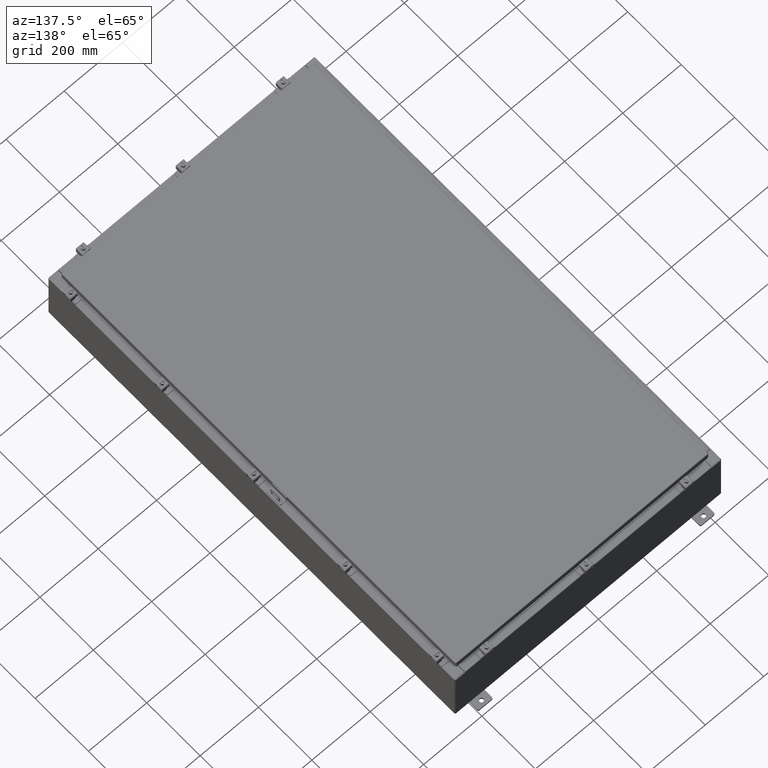
[diagram: clean part render]
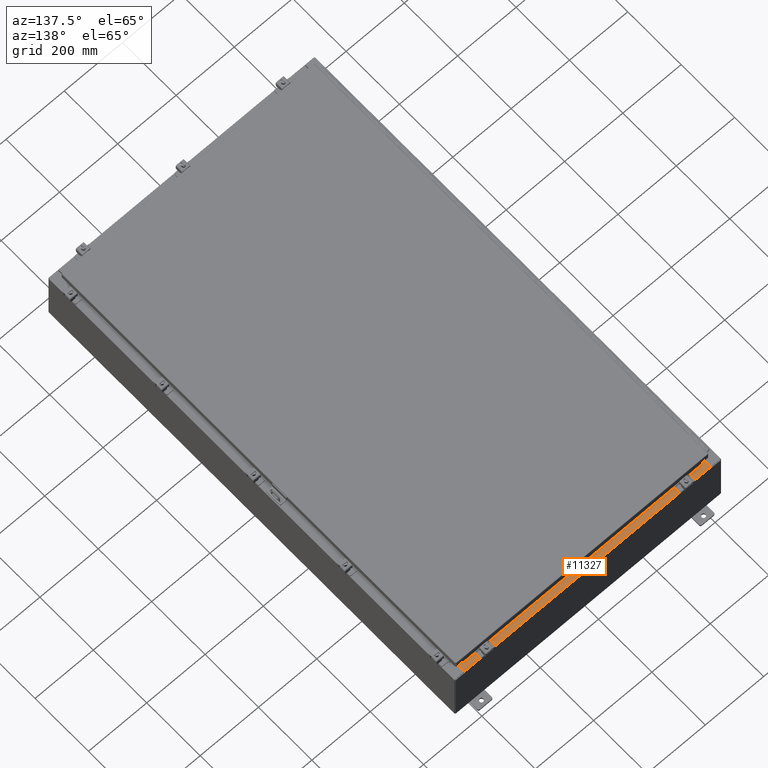
[diagram: same view with one face highlighted and labeled with its STEP entity id]
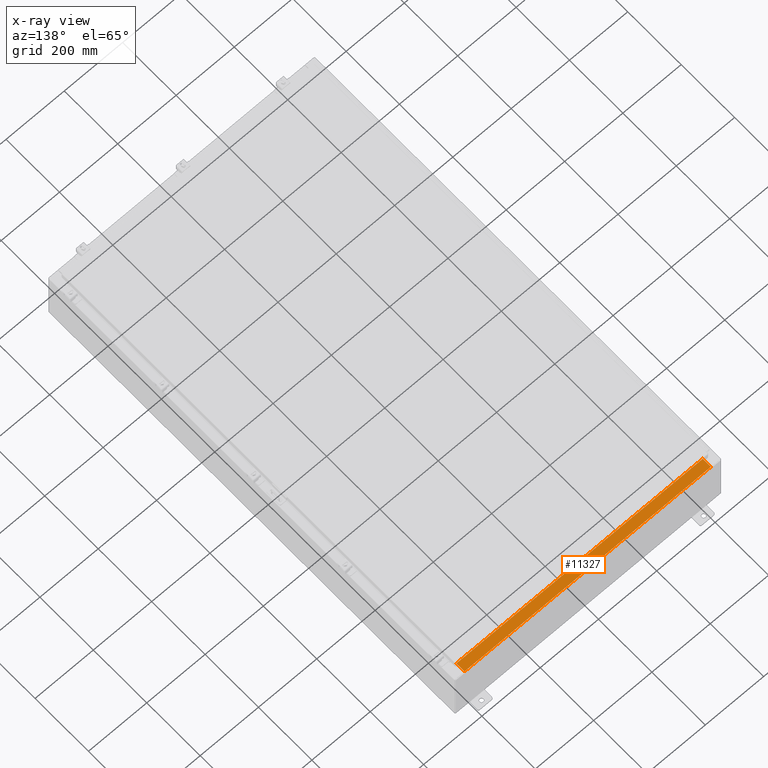
[diagram: x-ray of the same camera — body ghosted, the highlighted face saturated]
A machine part, auxiliary view. The second image highlights one B-rep face of the part: STEP entity #11327.
The next image is the same camera in x-ray: the body ghosted, the highlighted face saturated — about 0% of this face is hidden behind the body in this view.
In plain terms, the highlighted planar face has unit normal (0, 0, 1).
Its self-contained STEP definition (entity closure, byte-faithful):
#537 = EDGE_LOOP ( 'NONE', ( #36121, #57883, #21104, #30919 ) ) ;
#1423 = CARTESIAN_POINT ( 'NONE',  ( 16.63720000000000700, -1.287299999999999900, 4.000000000000004400 ) ) ;
#4238 = CARTESIAN_POINT ( 'NONE',  ( -2.880088825576348200E-018, -0.08769999999999972300, 4.000000000000000900 ) ) ;
#4437 = CARTESIAN_POINT ( 'NONE',  ( -16.63719999999999600, -0.07469999999999973900, 4.000000000000000900 ) ) ;
#6429 = VECTOR ( 'NONE', #49721, 39.37007874015748100 ) ;
#9070 = DIRECTION ( 'NONE',  ( 0.0000000000000000000, -1.000000000000000000, 3.566381192773190000E-015 ) ) ;
#10199 = DIRECTION ( 'NONE',  ( -0.0000000000000000000, -1.000000000000000000, 3.566381192773190000E-015 ) ) ;
#11206 = VERTEX_POINT ( 'NONE', #17576 ) ;
#11327 = ADVANCED_FACE ( 'NONE', ( #55633 ), #23533, .T. ) ;
#12673 = LINE ( 'NONE', #4238, #62876 ) ;
#15744 = EDGE_CURVE ( 'NONE', #43034, #33183, #33761, .T. ) ;
#17576 = CARTESIAN_POINT ( 'NONE',  ( 16.63720000000000700, -0.08769999999999937600, 4.000000000000000900 ) ) ;
#17783 = AXIS2_PLACEMENT_3D ( 'NONE', #28393, #38182, #9070 ) ;
#20482 = CARTESIAN_POINT ( 'NONE',  ( -16.63719999999999600, -1.287299999999999200, 4.000000000000004400 ) ) ;
#20496 = VERTEX_POINT ( 'NONE', #22207 ) ;
#21104 = ORIENTED_EDGE ( 'NONE', *, *, #53521, .F. ) ;
#22207 = CARTESIAN_POINT ( 'NONE',  ( -16.63719999999999600, -0.08769999999999972300, 4.000000000000000900 ) ) ;
#23533 = PLANE ( 'NONE',  #17783 ) ;
#24899 = CARTESIAN_POINT ( 'NONE',  ( 16.63720000000000400, -1.287299999999999900, 4.000000000000004400 ) ) ;
#28060 = EDGE_CURVE ( 'NONE', #11206, #20496, #12673, .T. ) ;
#28393 = CARTESIAN_POINT ( 'NONE',  ( 0.0000000000000000000, 1.425992975200418500E-014, 4.000000000000000900 ) ) ;
#30919 = ORIENTED_EDGE ( 'NONE', *, *, #28060, .T. ) ;
#33183 = VERTEX_POINT ( 'NONE', #20482 ) ;
#33761 = LINE ( 'NONE', #1423, #6429 ) ;
#36121 = ORIENTED_EDGE ( 'NONE', *, *, #52255, .F. ) ;
#38182 = DIRECTION ( 'NONE',  ( 0.0000000000000000000, 3.566381192773190000E-015, 1.000000000000000000 ) ) ;
#40793 = VECTOR ( 'NONE', #53151, 39.37007874015748100 ) ;
#43034 = VERTEX_POINT ( 'NONE', #24899 ) ;
#49721 = DIRECTION ( 'NONE',  ( -1.000000000000000000, 0.0000000000000000000, 0.0000000000000000000 ) ) ;
#49791 = VECTOR ( 'NONE', #10199, 39.37007874015748100 ) ;
#52255 = EDGE_CURVE ( 'NONE', #33183, #20496, #53749, .T. ) ;
#53151 = DIRECTION ( 'NONE',  ( -0.0000000000000000000, 1.000000000000000000, -3.566381192773190000E-015 ) ) ;
#53521 = EDGE_CURVE ( 'NONE', #11206, #43034, #62708, .T. ) ;
#53749 = LINE ( 'NONE', #4437, #40793 ) ;
#55633 = FACE_OUTER_BOUND ( 'NONE', #537, .T. ) ;
#57844 = CARTESIAN_POINT ( 'NONE',  ( 16.63720000000000400, -1.300299999999999800, 4.000000000000004400 ) ) ;
#57870 = DIRECTION ( 'NONE',  ( -1.000000000000000000, 3.284023746380717400E-017, -1.171208052571274300E-031 ) ) ;
#57883 = ORIENTED_EDGE ( 'NONE', *, *, #15744, .F. ) ;
#62708 = LINE ( 'NONE', #57844, #49791 ) ;
#62876 = VECTOR ( 'NONE', #57870, 39.37007874015748100 ) ;